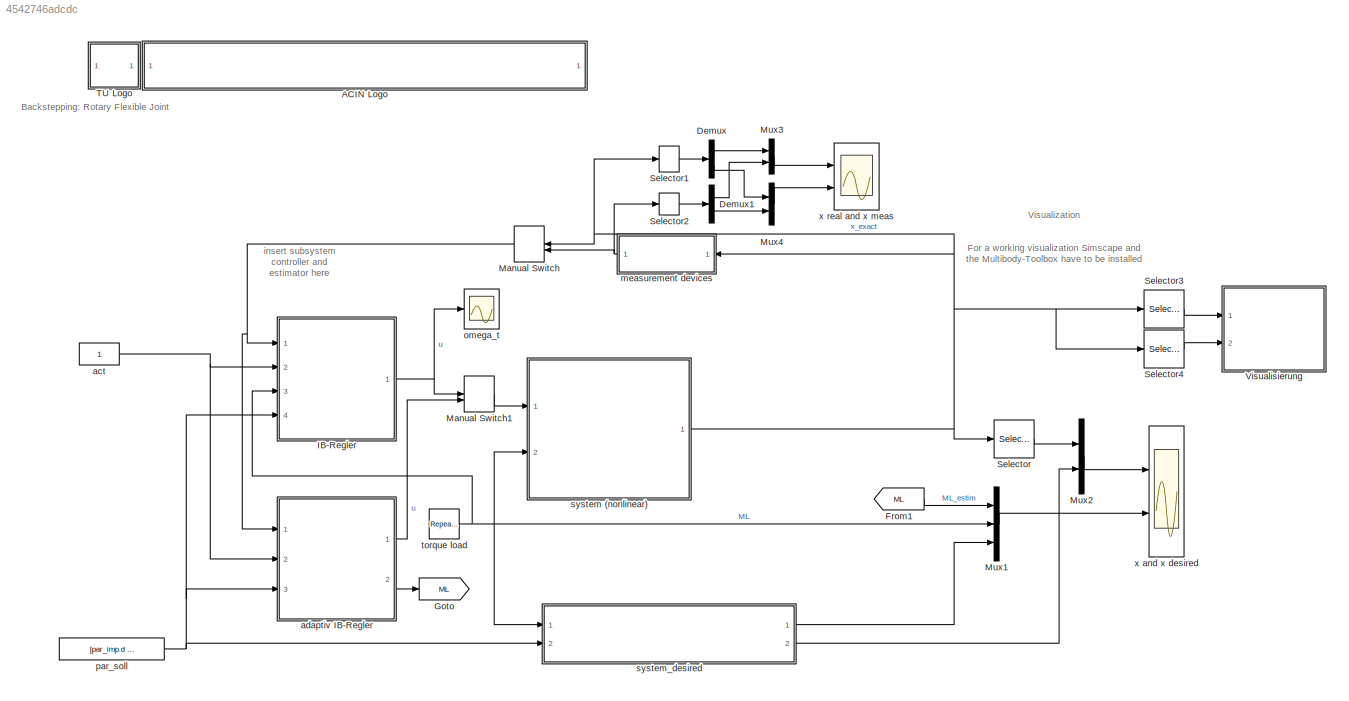
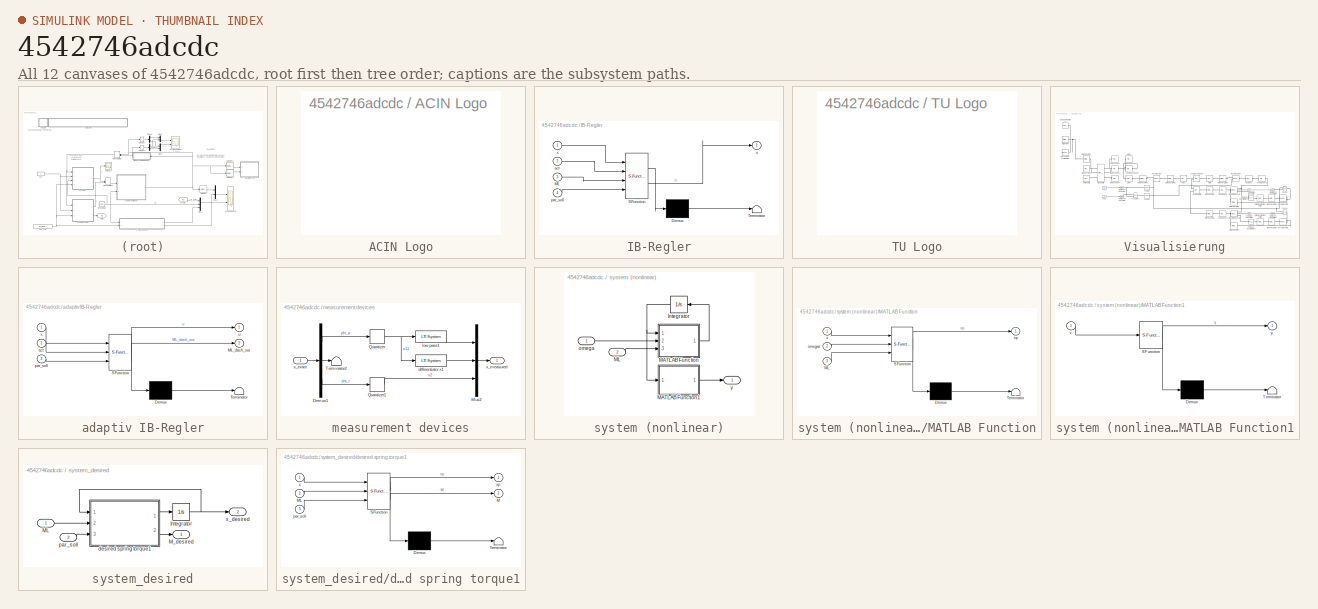
[diagram: thumbnail index - all 12 canvases of the model, root first then tree order]
MODEL slx_4542746adcdc
KIND model
CONFIG AbsTol = auto
CONFIG EnableMultiTasking = off
CONFIG FixedStep = auto
CONFIG MaxStep = auto
CONFIG MinStep = auto
CONFIG RelTol = 1e-3
CONFIG SampleTimeConstraint = Unconstrained
CONFIG SolverName = VariableStepAuto
CONFIG StartTime = 0.0
CONFIG StopTime = 10.0
BLOCK [SubSystem] ACIN Logo
  Ports = []
  RequestExecContextInheritance = off
  UserDataPersistent = on
BLOCK [Demux] Demux
  Outputs = 2
  Ports = [1, 2]
BLOCK [Demux] Demux1
  Outputs = 2
  Ports = [1, 2]
BLOCK [From] From1
  CloseFcn = tagdialog Close
  GotoTag = ML
BLOCK [Goto] Goto
  GotoTag = ML
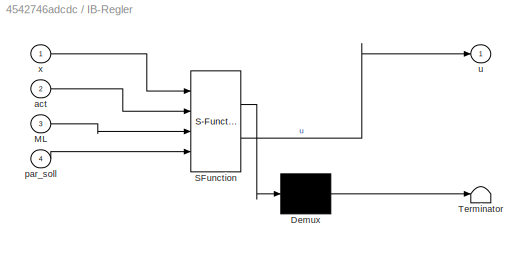
BLOCK [SubSystem] IB-Regler
  ErrorFcn = Stateflow.Translate.translate
  PermitHierarchicalResolution = ExplicitOnly
  Ports = [4, 1]
  RequestExecContextInheritance = off
  SFBlockType = MATLAB Function
  TreatAsAtomicUnit = on
BLOCK [Demux] IB-Regler/ Demux 
  Outputs = 1
  Ports = [1, 1]
BLOCK [S-Function] IB-Regler/ SFunction 
  EnableBusSupport = on
  FunctionName = sf_sfun
  Parameters = parSys,par_reg
  PortCounts = [4 2]
  Ports = [4, 2]
  SFcnIsStateOwnerBlock = off
  SFunctionDeploymentMode = off
  Tag = Stateflow S-Function 2
BLOCK [Terminator] IB-Regler/ Terminator 
BLOCK [Inport] IB-Regler/ML
  Port = 3
BLOCK [Inport] IB-Regler/act
  Port = 2
BLOCK [Inport] IB-Regler/par_soll
  Port = 4
BLOCK [Outport] IB-Regler/u
BLOCK [Inport] IB-Regler/x
BLOCK [ManualSwitch] Manual Switch
  CurrentSetting = 0
BLOCK [ManualSwitch] Manual Switch1
BLOCK [Mux] Mux1
  DisplayOption = bar
  Inputs = 3
  Ports = [3, 1]
BLOCK [Mux] Mux2
  DisplayOption = bar
  Inputs = 2
  Ports = [2, 1]
BLOCK [Mux] Mux3
  DisplayOption = bar
  Inputs = 2
  Ports = [2, 1]
BLOCK [Mux] Mux4
  DisplayOption = bar
  Inputs = 2
  Ports = [2, 1]
BLOCK [Selector] Selector
  IndexOptions = Index vector (dialog)
  Indices = [1 2]
  InputPortWidth = 3
  OutputSizes = 1
  Ports = [1, 1]
BLOCK [Selector] Selector1
  IndexOptions = Index vector (dialog)
  Indices = [1 2]
  InputPortWidth = 3
  OutputSizes = 1
  Ports = [1, 1]
BLOCK [Selector] Selector2
  IndexOptions = Index vector (dialog)
  Indices = [1 2]
  InputPortWidth = 3
  OutputSizes = 1
  Ports = [1, 1]
BLOCK [Selector] Selector3
  IndexOptions = Index vector (dialog)
  Indices = [1]
  InputPortWidth = 3
  OutputSizes = 1
  Ports = [1, 1]
BLOCK [Selector] Selector4
  IndexOptions = Index vector (dialog)
  Indices = [3]
  InputPortWidth = 3
  OutputSizes = 1
  Ports = [1, 1]
BLOCK [SubSystem] TU Logo
  Ports = []
  RequestExecContextInheritance = off
  UserDataPersistent = on
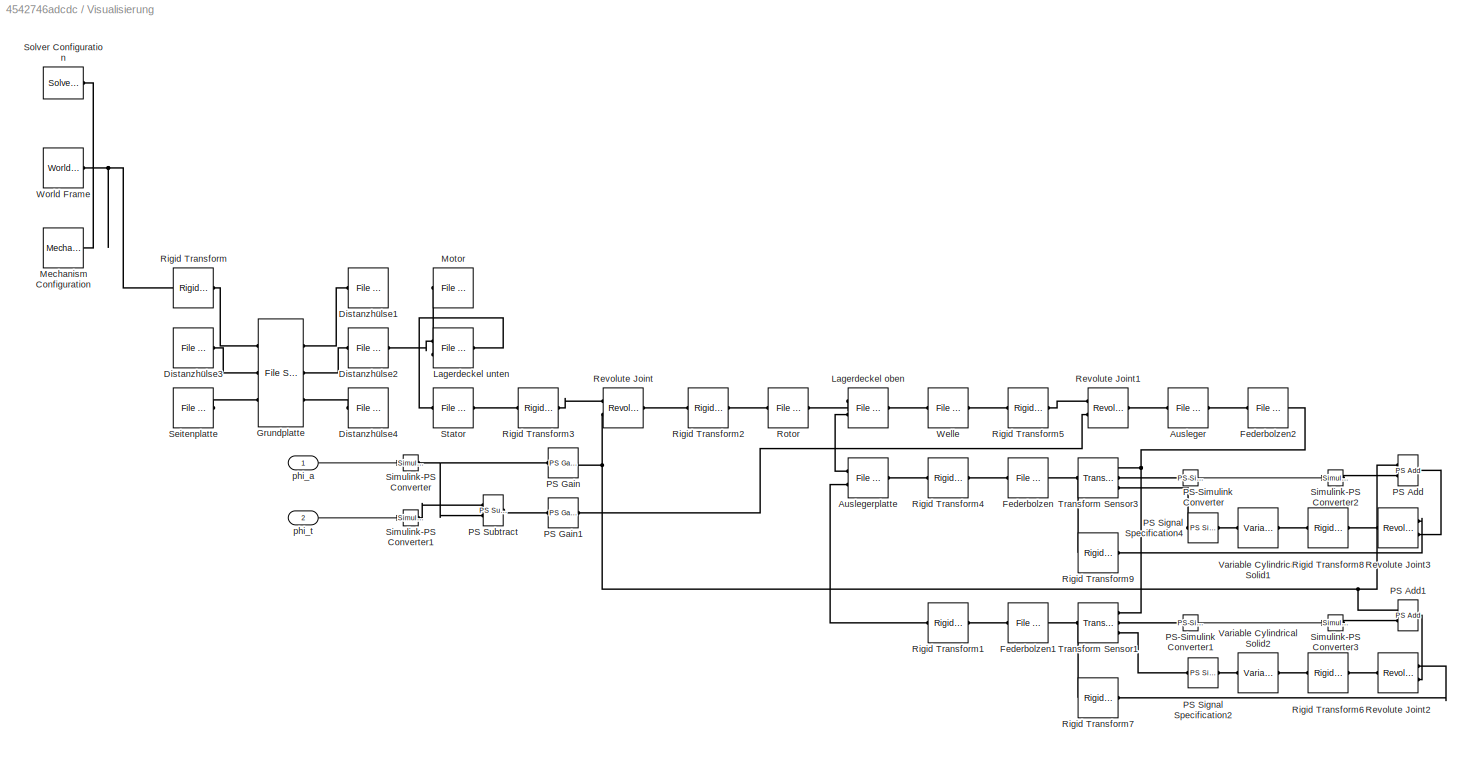
BLOCK [SubSystem] Visualisierung
  Ports = [2]
  RequestExecContextInheritance = off
BLOCK [Reference] Visualisierung/Ausleger  REF=sm_lib/Body Elements/File Solid
  Ports = [0, 0, 0, 0, 0, 1, 1]
  SourceBlock = sm_lib/Body Elements/File Solid
  SourceProductBaseCode = MS
  SourceType = File Solid
BLOCK [Reference] Visualisierung/Auslegerplatte  REF=sm_lib/Body Elements/File Solid
  Ports = [0, 0, 0, 0, 0, 2, 1]
  SourceBlock = sm_lib/Body Elements/File Solid
  SourceProductBaseCode = MS
  SourceType = File Solid
BLOCK [Reference] Visualisierung/Distanzhülse1  REF=sm_lib/Body Elements/File Solid
  Ports = [0, 0, 0, 0, 0, 0, 1]
  SourceBlock = sm_lib/Body Elements/File Solid
  SourceProductBaseCode = MS
  SourceType = File Solid
BLOCK [Reference] Visualisierung/Distanzhülse2  REF=sm_lib/Body Elements/File Solid
  Ports = [0, 0, 0, 0, 0, 1, 1]
  SourceBlock = sm_lib/Body Elements/File Solid
  SourceProductBaseCode = MS
  SourceType = File Solid
BLOCK [Reference] Visualisierung/Distanzhülse3  REF=sm_lib/Body Elements/File Solid
  Ports = [0, 0, 0, 0, 0, 0, 1]
  SourceBlock = sm_lib/Body Elements/File Solid
  SourceProductBaseCode = MS
  SourceType = File Solid
BLOCK [Reference] Visualisierung/Distanzhülse4  REF=sm_lib/Body Elements/File Solid
  Ports = [0, 0, 0, 0, 0, 0, 1]
  SourceBlock = sm_lib/Body Elements/File Solid
  SourceProductBaseCode = MS
  SourceType = File Solid
BLOCK [Reference] Visualisierung/Federbolzen  REF=sm_lib/Body Elements/File Solid
  Ports = [0, 0, 0, 0, 0, 1, 1]
  SourceBlock = sm_lib/Body Elements/File Solid
  SourceProductBaseCode = MS
  SourceType = File Solid
BLOCK [Reference] Visualisierung/Federbolzen1  REF=sm_lib/Body Elements/File Solid
  Ports = [0, 0, 0, 0, 0, 1, 1]
  SourceBlock = sm_lib/Body Elements/File Solid
  SourceProductBaseCode = MS
  SourceType = File Solid
BLOCK [Reference] Visualisierung/Federbolzen2  REF=sm_lib/Body Elements/File Solid
  Ports = [0, 0, 0, 0, 0, 1, 1]
  SourceBlock = sm_lib/Body Elements/File Solid
  SourceProductBaseCode = MS
  SourceType = File Solid
BLOCK [Reference] Visualisierung/Grundplatte  REF=sm_lib/Body Elements/File Solid
  Ports = [0, 0, 0, 0, 0, 3, 3]
  SourceBlock = sm_lib/Body Elements/File Solid
  SourceProductBaseCode = MS
  SourceType = File Solid
BLOCK [Reference] Visualisierung/Lagerdeckel oben  REF=sm_lib/Body Elements/File Solid
  Ports = [0, 0, 0, 0, 0, 2, 1]
  SourceBlock = sm_lib/Body Elements/File Solid
  SourceProductBaseCode = MS
  SourceType = File Solid
BLOCK [Reference] Visualisierung/Lagerdeckel unten  REF=sm_lib/Body Elements/File Solid
  Ports = [0, 0, 0, 0, 0, 2, 1]
  SourceBlock = sm_lib/Body Elements/File Solid
  SourceProductBaseCode = MS
  SourceType = File Solid
BLOCK [Reference] Visualisierung/Mechanism Configuration  REF=sm_lib/Utilities/Mechanism
Configuration
  Ports = [0, 0, 0, 0, 0, 0, 1]
  SourceBlock = sm_lib/Utilities/Mechanism\nConfiguration
  SourceProductBaseCode = MS
  SourceType = Mechanism\nConfiguration
BLOCK [Reference] Visualisierung/Motor  REF=sm_lib/Body Elements/File Solid
  Ports = [0, 0, 0, 0, 0, 1]
  SourceBlock = sm_lib/Body Elements/File Solid
  SourceProductBaseCode = MS
  SourceType = File Solid
BLOCK [Reference] Visualisierung/PS Add  REF=fl_lib/Physical Signals/Functions/PS Add
  Ports = [0, 0, 0, 0, 0, 2, 1]
  SourceBlock = fl_lib/Physical Signals/Functions/PS Add
  SourceProductBaseCode = SS
  SourceType = PS Add
BLOCK [Reference] Visualisierung/PS Add1  REF=fl_lib/Physical Signals/Functions/PS Add
  Ports = [0, 0, 0, 0, 0, 2, 1]
  SourceBlock = fl_lib/Physical Signals/Functions/PS Add
  SourceProductBaseCode = SS
  SourceType = PS Add
BLOCK [Reference] Visualisierung/PS Gain  REF=fl_lib/Physical Signals/Functions/PS Gain
  Ports = [0, 0, 0, 0, 0, 1, 1]
  SourceBlock = fl_lib/Physical Signals/Functions/PS Gain
  SourceProductBaseCode = SS
  SourceType = PS Gain
BLOCK [Reference] Visualisierung/PS Gain1  REF=fl_lib/Physical Signals/Functions/PS Gain
  Ports = [0, 0, 0, 0, 0, 1, 1]
  SourceBlock = fl_lib/Physical Signals/Functions/PS Gain
  SourceProductBaseCode = SS
  SourceType = PS Gain
BLOCK [Reference] Visualisierung/PS Signal Specification2  REF=fl_lib/Physical Signals/Utilities/PS Signal
Specification
  Ports = [0, 0, 0, 0, 0, 1, 1]
  SourceBlock = fl_lib/Physical Signals/Utilities/PS Signal\nSpecification
  SourceProductBaseCode = SS
  SourceType = PS Signal\nSpecification
BLOCK [Reference] Visualisierung/PS Signal Specification4  REF=fl_lib/Physical Signals/Utilities/PS Signal
Specification
  Ports = [0, 0, 0, 0, 0, 1, 1]
  SourceBlock = fl_lib/Physical Signals/Utilities/PS Signal\nSpecification
  SourceProductBaseCode = SS
  SourceType = PS Signal\nSpecification
BLOCK [Reference] Visualisierung/PS Subtract  REF=fl_lib/Physical Signals/Functions/PS Subtract
  Ports = [0, 0, 0, 0, 0, 2, 1]
  SourceBlock = fl_lib/Physical Signals/Functions/PS Subtract
  SourceProductBaseCode = SS
  SourceType = PS Subtract
BLOCK [Reference] Visualisierung/PS-Simulink Converter  REF=nesl_utility/PS-Simulink
Converter
  Ports = [0, 1, 0, 0, 0, 1]
  SourceBlock = nesl_utility/PS-Simulink\nConverter
  SourceProductBaseCode = SS
  SourceType = PS-Simulink\nConverter
BLOCK [Reference] Visualisierung/PS-Simulink Converter1  REF=nesl_utility/PS-Simulink
Converter
  Ports = [0, 1, 0, 0, 0, 1]
  SourceBlock = nesl_utility/PS-Simulink\nConverter
  SourceProductBaseCode = SS
  SourceType = PS-Simulink\nConverter
BLOCK [Reference] Visualisierung/Revolute Joint  REF=sm_lib/Joints/Revolute Joint
  Ports = [0, 0, 0, 0, 0, 2, 1]
  SourceBlock = sm_lib/Joints/Revolute Joint
  SourceProductBaseCode = MS
  SourceType = Revolute Joint
BLOCK [Reference] Visualisierung/Revolute Joint1  REF=sm_lib/Joints/Revolute Joint
  Ports = [0, 0, 0, 0, 0, 2, 1]
  SourceBlock = sm_lib/Joints/Revolute Joint
  SourceProductBaseCode = MS
  SourceType = Revolute Joint
BLOCK [Reference] Visualisierung/Revolute Joint2  REF=sm_lib/Joints/Revolute Joint
  Ports = [0, 0, 0, 0, 0, 2, 1]
  SourceBlock = sm_lib/Joints/Revolute Joint
  SourceProductBaseCode = MS
  SourceType = Revolute Joint
BLOCK [Reference] Visualisierung/Revolute Joint3  REF=sm_lib/Joints/Revolute Joint
  Ports = [0, 0, 0, 0, 0, 2, 1]
  SourceBlock = sm_lib/Joints/Revolute Joint
  SourceProductBaseCode = MS
  SourceType = Revolute Joint
BLOCK [Reference] Visualisierung/Rigid Transform  REF=sm_lib/Frames and
Transforms/Rigid
Transform
  Ports = [0, 0, 0, 0, 0, 1, 1]
  SourceBlock = sm_lib/Frames and\nTransforms/Rigid\nTransform
  SourceProductBaseCode = MS
  SourceType = Rigid\nTransform
BLOCK [Reference] Visualisierung/Rigid Transform1  REF=sm_lib/Frames and
Transforms/Rigid
Transform
  Ports = [0, 0, 0, 0, 0, 1, 1]
  SourceBlock = sm_lib/Frames and\nTransforms/Rigid\nTransform
  SourceProductBaseCode = MS
  SourceType = Rigid\nTransform
BLOCK [Reference] Visualisierung/Rigid Transform2  REF=sm_lib/Frames and
Transforms/Rigid
Transform
  Ports = [0, 0, 0, 0, 0, 1, 1]
  SourceBlock = sm_lib/Frames and\nTransforms/Rigid\nTransform
  SourceProductBaseCode = MS
  SourceType = Rigid\nTransform
BLOCK [Reference] Visualisierung/Rigid Transform3  REF=sm_lib/Frames and
Transforms/Rigid
Transform
  Ports = [0, 0, 0, 0, 0, 1, 1]
  SourceBlock = sm_lib/Frames and\nTransforms/Rigid\nTransform
  SourceProductBaseCode = MS
  SourceType = Rigid\nTransform
BLOCK [Reference] Visualisierung/Rigid Transform4  REF=sm_lib/Frames and
Transforms/Rigid
Transform
  Ports = [0, 0, 0, 0, 0, 1, 1]
  SourceBlock = sm_lib/Frames and\nTransforms/Rigid\nTransform
  SourceProductBaseCode = MS
  SourceType = Rigid\nTransform
BLOCK [Reference] Visualisierung/Rigid Transform5  REF=sm_lib/Frames and
Transforms/Rigid
Transform
  Ports = [0, 0, 0, 0, 0, 1, 1]
  SourceBlock = sm_lib/Frames and\nTransforms/Rigid\nTransform
  SourceProductBaseCode = MS
  SourceType = Rigid\nTransform
BLOCK [Reference] Visualisierung/Rigid Transform6  REF=sm_lib/Frames and
Transforms/Rigid
Transform
  Ports = [0, 0, 0, 0, 0, 1, 1]
  SourceBlock = sm_lib/Frames and\nTransforms/Rigid\nTransform
  SourceProductBaseCode = MS
  SourceType = Rigid\nTransform
BLOCK [Reference] Visualisierung/Rigid Transform7  REF=sm_lib/Frames and
Transforms/Rigid
Transform
  Ports = [0, 0, 0, 0, 0, 1, 1]
  SourceBlock = sm_lib/Frames and\nTransforms/Rigid\nTransform
  SourceProductBaseCode = MS
  SourceType = Rigid\nTransform
BLOCK [Reference] Visualisierung/Rigid Transform8  REF=sm_lib/Frames and
Transforms/Rigid
Transform
  Ports = [0, 0, 0, 0, 0, 1, 1]
  SourceBlock = sm_lib/Frames and\nTransforms/Rigid\nTransform
  SourceProductBaseCode = MS
  SourceType = Rigid\nTransform
BLOCK [Reference] Visualisierung/Rigid Transform9  REF=sm_lib/Frames and
Transforms/Rigid
Transform
  Ports = [0, 0, 0, 0, 0, 1, 1]
  SourceBlock = sm_lib/Frames and\nTransforms/Rigid\nTransform
  SourceProductBaseCode = MS
  SourceType = Rigid\nTransform
BLOCK [Reference] Visualisierung/Rotor  REF=sm_lib/Body Elements/File Solid
  Ports = [0, 0, 0, 0, 0, 1, 1]
  SourceBlock = sm_lib/Body Elements/File Solid
  SourceProductBaseCode = MS
  SourceType = File Solid
BLOCK [Reference] Visualisierung/Seitenplatte  REF=sm_lib/Body Elements/File Solid
  Ports = [0, 0, 0, 0, 0, 1]
  SourceBlock = sm_lib/Body Elements/File Solid
  SourceProductBaseCode = MS
  SourceType = File Solid
BLOCK [Reference] Visualisierung/Simulink-PS Converter  REF=nesl_utility/Simulink-PS
Converter
  Ports = [1, 0, 0, 0, 0, 0, 1]
  SourceBlock = nesl_utility/Simulink-PS\nConverter
  SourceProductBaseCode = SS
  SourceType = Simulink-PS\nConverter
BLOCK [Reference] Visualisierung/Simulink-PS Converter1  REF=nesl_utility/Simulink-PS
Converter
  Ports = [1, 0, 0, 0, 0, 0, 1]
  SourceBlock = nesl_utility/Simulink-PS\nConverter
  SourceProductBaseCode = SS
  SourceType = Simulink-PS\nConverter
BLOCK [Reference] Visualisierung/Simulink-PS Converter2  REF=nesl_utility/Simulink-PS
Converter
  Ports = [1, 0, 0, 0, 0, 0, 1]
  SourceBlock = nesl_utility/Simulink-PS\nConverter
  SourceProductBaseCode = SS
  SourceType = Simulink-PS\nConverter
BLOCK [Reference] Visualisierung/Simulink-PS Converter3  REF=nesl_utility/Simulink-PS
Converter
  Ports = [1, 0, 0, 0, 0, 0, 1]
  SourceBlock = nesl_utility/Simulink-PS\nConverter
  SourceProductBaseCode = SS
  SourceType = Simulink-PS\nConverter
BLOCK [Reference] Visualisierung/Solver Configuration  REF=nesl_utility/Solver
Configuration
  Ports = [0, 0, 0, 0, 0, 0, 1]
  SourceBlock = nesl_utility/Solver\nConfiguration
  SourceProductBaseCode = SS
  SourceType = Solver\nConfiguration
BLOCK [Reference] Visualisierung/Stator  REF=sm_lib/Body Elements/File Solid
  Ports = [0, 0, 0, 0, 0, 1, 1]
  SourceBlock = sm_lib/Body Elements/File Solid
  SourceProductBaseCode = MS
  SourceType = File Solid
BLOCK [Reference] Visualisierung/Transform Sensor1  REF=sm_lib/Frames and
Transforms/Transform
Sensor
  Ports = [0, 0, 0, 0, 0, 1, 3]
  SourceBlock = sm_lib/Frames and\nTransforms/Transform\nSensor
  SourceProductBaseCode = MS
  SourceType = Transform\nSensor
BLOCK [Reference] Visualisierung/Transform Sensor3  REF=sm_lib/Frames and
Transforms/Transform
Sensor
  Ports = [0, 0, 0, 0, 0, 1, 3]
  SourceBlock = sm_lib/Frames and\nTransforms/Transform\nSensor
  SourceProductBaseCode = MS
  SourceType = Transform\nSensor
BLOCK [Reference] Visualisierung/Variable Cylindrical Solid1  REF=sm_lib/Body Elements/Variable Mass/Variable
Cylindrical Solid
  Ports = [0, 0, 0, 0, 0, 1, 1]
  SourceBlock = sm_lib/Body Elements/Variable Mass/Variable\nCylindrical Solid
  SourceProductBaseCode = MS
  SourceType = Variable\nCylindrical Solid
BLOCK [Reference] Visualisierung/Variable Cylindrical Solid2  REF=sm_lib/Body Elements/Variable Mass/Variable
Cylindrical Solid
  Ports = [0, 0, 0, 0, 0, 1, 1]
  SourceBlock = sm_lib/Body Elements/Variable Mass/Variable\nCylindrical Solid
  SourceProductBaseCode = MS
  SourceType = Variable\nCylindrical Solid
BLOCK [Reference] Visualisierung/Welle  REF=sm_lib/Body Elements/File Solid
  Ports = [0, 0, 0, 0, 0, 1, 1]
  SourceBlock = sm_lib/Body Elements/File Solid
  SourceProductBaseCode = MS
  SourceType = File Solid
BLOCK [Reference] Visualisierung/World Frame  REF=sm_lib/Frames and
Transforms/World Frame
  Ports = [0, 0, 0, 0, 0, 0, 1]
  SourceBlock = sm_lib/Frames and\nTransforms/World Frame
  SourceProductBaseCode = MS
  SourceType = World Frame
BLOCK [Inport] Visualisierung/phi_a
BLOCK [Inport] Visualisierung/phi_t
  Port = 2
BLOCK [Constant] act
BLOCK [SubSystem] adaptiv IB-Regler
  ErrorFcn = Stateflow.Translate.translate
  PermitHierarchicalResolution = ExplicitOnly
  Ports = [3, 2]
  RequestExecContextInheritance = off
  SFBlockType = MATLAB Function
  TreatAsAtomicUnit = on
BLOCK [Demux] adaptiv IB-Regler/ Demux 
  Outputs = 1
  Ports = [1, 1]
BLOCK [S-Function] adaptiv IB-Regler/ SFunction 
  EnableBusSupport = on
  FunctionName = sf_sfun
  Parameters = parSys,par_reg
  PortCounts = [3 3]
  Ports = [3, 3]
  SFcnIsStateOwnerBlock = off
  SFunctionDeploymentMode = off
  Tag = Stateflow S-Function 5
BLOCK [Terminator] adaptiv IB-Regler/ Terminator 
BLOCK [Outport] adaptiv IB-Regler/ML_dach_out
  Port = 2
BLOCK [Inport] adaptiv IB-Regler/act
  Port = 2
BLOCK [Inport] adaptiv IB-Regler/par_soll
  Port = 3
BLOCK [Outport] adaptiv IB-Regler/u
BLOCK [Inport] adaptiv IB-Regler/x
BLOCK [SubSystem] measurement devices
  Ports = [1, 1]
  RequestExecContextInheritance = off
BLOCK [Demux] measurement devices/Demux1
  Outputs = 3
  Ports = [1, 3]
BLOCK [Mux] measurement devices/Mux2
  DisplayOption = bar
  Inputs = 3
  Ports = [3, 1]
BLOCK [Quantizer] measurement devices/Quantizer
  QuantizationInterval = 2*pi/(3600*128)
BLOCK [Quantizer] measurement devices/Quantizer1
  QuantizationInterval = 2*pi/(2^16)
BLOCK [Terminator] measurement devices/Terminator2
BLOCK [Reference] measurement devices/differentiator x1  REF=cstblocks/LTI System
  Ports = [1, 1]
  SourceBlock = cstblocks/LTI System
  SourceProductBaseCode = CT
  SourceType = LTI Block
BLOCK [Reference] measurement devices/low pass1  REF=cstblocks/LTI System
  Ports = [1, 1]
  SourceBlock = cstblocks/LTI System
  SourceProductBaseCode = CT
  SourceType = LTI Block
BLOCK [Inport] measurement devices/x_exact
BLOCK [Outport] measurement devices/x_measured
BLOCK [Scope] omega_t
  Floating = off
  NumInputPorts = 1
  Ports = [1]
  ScopeSpecificationString = Simulink.scopes.TimeScopeBlockCfg('CurrentConfiguration', extmgr.ConfigurationSet(extmgr.Configuration('Core','General UI',true),extmgr.Configuration('Core','Source UI',true),extmgr.Configuration('Sources','WiredSimulink',true,'DataLoggingVariableName','ScopeData1','DataLoggingSaveFormat','StructureWithTime','DataLoggingDecimation','1','DataLoggingDecimateData',true),extmgr.Configuration('Visuals'...<+1662ch>
BLOCK [Constant] par_soll
  Value = [par_imp.d par_imp.M_max par_imp.c]
BLOCK [SubSystem] system (nonlinear)
  Ports = [2, 1]
  RequestExecContextInheritance = off
BLOCK [Integrator] system (nonlinear)/Integrator
  InitialCondition = [parSys.phit_0; parSys.phia_0; parSys.omega_0]
  Ports = [1, 1]
BLOCK [SubSystem] system (nonlinear)/MATLAB Function
  ErrorFcn = Stateflow.Translate.translate
  PermitHierarchicalResolution = ExplicitOnly
  Ports = [3, 1]
  RequestExecContextInheritance = off
  SFBlockType = MATLAB Function
  TreatAsAtomicUnit = on
BLOCK [Demux] system (nonlinear)/MATLAB Function/ Demux 
  Outputs = 1
  Ports = [1, 1]
BLOCK [S-Function] system (nonlinear)/MATLAB Function/ SFunction 
  EnableBusSupport = on
  FunctionName = sf_sfun
  PortCounts = [3 2]
  Ports = [3, 2]
  SFcnIsStateOwnerBlock = off
  SFunctionDeploymentMode = off
  Tag = Stateflow S-Function 3
BLOCK [Terminator] system (nonlinear)/MATLAB Function/ Terminator 
BLOCK [Inport] system (nonlinear)/MATLAB Function/ML
  Port = 3
BLOCK [Inport] system (nonlinear)/MATLAB Function/omegat
  Port = 2
BLOCK [Inport] system (nonlinear)/MATLAB Function/x
BLOCK [Outport] system (nonlinear)/MATLAB Function/xp
BLOCK [SubSystem] system (nonlinear)/MATLAB Function1
  ErrorFcn = Stateflow.Translate.translate
  PermitHierarchicalResolution = ExplicitOnly
  Ports = [1, 1]
  RequestExecContextInheritance = off
  SFBlockType = MATLAB Function
  TreatAsAtomicUnit = on
BLOCK [Demux] system (nonlinear)/MATLAB Function1/ Demux 
  Outputs = 1
  Ports = [1, 1]
BLOCK [S-Function] system (nonlinear)/MATLAB Function1/ SFunction 
  EnableBusSupport = on
  FunctionName = sf_sfun
  Parameters = parSys
  PortCounts = [1 2]
  Ports = [1, 2]
  SFcnIsStateOwnerBlock = off
  SFunctionDeploymentMode = off
  Tag = Stateflow S-Function 4
BLOCK [Terminator] system (nonlinear)/MATLAB Function1/ Terminator 
BLOCK [Inport] system (nonlinear)/MATLAB Function1/x
BLOCK [Outport] system (nonlinear)/MATLAB Function1/y
BLOCK [Inport] system (nonlinear)/ML
  Port = 2
BLOCK [Inport] system (nonlinear)/omega
BLOCK [Outport] system (nonlinear)/y
BLOCK [SubSystem] system_desired
  Ports = [2, 2]
  RequestExecContextInheritance = off
  UserDataPersistent = on
BLOCK [Integrator] system_desired/Integrator
  InitialCondition = [0 0]
  Ports = [1, 1]
BLOCK [Inport] system_desired/ML
BLOCK [Outport] system_desired/M_desired
BLOCK [SubSystem] system_desired/desired spring torque1
  ErrorFcn = Stateflow.Translate.translate
  PermitHierarchicalResolution = ExplicitOnly
  Ports = [3, 2]
  RequestExecContextInheritance = off
  SFBlockType = MATLAB Function
  TreatAsAtomicUnit = on
BLOCK [Demux] system_desired/desired spring torque1/ Demux 
  Outputs = 1
  Ports = [1, 1]
BLOCK [S-Function] system_desired/desired spring torque1/ SFunction 
  EnableBusSupport = on
  FunctionName = sf_sfun
  Parameters = parSys
  PortCounts = [3 3]
  Ports = [3, 3]
  SFcnIsStateOwnerBlock = off
  SFunctionDeploymentMode = off
  Tag = Stateflow S-Function 1
BLOCK [Terminator] system_desired/desired spring torque1/ Terminator 
BLOCK [Outport] system_desired/desired spring torque1/M
  Port = 2
BLOCK [Inport] system_desired/desired spring torque1/ML
  Port = 2
BLOCK [Inport] system_desired/desired spring torque1/par_soll
  Port = 3
BLOCK [Inport] system_desired/desired spring torque1/x
BLOCK [Outport] system_desired/desired spring torque1/xp
BLOCK [Inport] system_desired/par_soll
  Port = 2
BLOCK [Outport] system_desired/x_desired
  Port = 2
BLOCK [Reference] torque load  REF=simulink/Sources/Repeating
Sequence
  Ports = [0, 1]
  SourceBlock = simulink/Sources/Repeating\nSequence
  SourceProductBaseCode = SL
  SourceType = Repeating table
BLOCK [Scope] x and x desired
  Floating = off
  NumInputPorts = 2
  Ports = [2]
  ScopeSpecificationString = Simulink.scopes.TimeScopeBlockCfg('CurrentConfiguration', extmgr.ConfigurationSet(extmgr.Configuration('Core','General UI',true),extmgr.Configuration('Core','Source UI',true),extmgr.Configuration('Sources','WiredSimulink',true,'DataLoggingSaveFormat','StructureWithTime','DataLoggingDecimation','1','DataLoggingDecimateData',true),extmgr.Configuration('Visuals','Time Domain',true,'SerializedDisplays...<+2471ch>
BLOCK [Scope] x real and x meas
  Floating = off
  NumInputPorts = 2
  Ports = [2]
  ScopeSpecificationString = Simulink.scopes.TimeScopeBlockCfg('CurrentConfiguration', extmgr.ConfigurationSet(extmgr.Configuration('Core','General UI',true),extmgr.Configuration('Core','Source UI',true),extmgr.Configuration('Sources','WiredSimulink',true,'DataLoggingVariableName','ScopeData2','DataLoggingSaveFormat','StructureWithTime','DataLoggingDecimation','1','DataLoggingDecimateData',true),extmgr.Configuration('Visuals'...<+2365ch>
ANNOTATION (root): Visualization
ANNOTATION (root): Backstepping: Rotary Flexible Joint
ANNOTATION (root): For a working visualization Simscape and the Multibody-Toolbox have to be installed
ANNOTATION (root): insert subsystem controller and estimator here
LINE Demux1:1 -> Mux3:2
LINE Demux1:2 -> Mux4:2
LINE Demux:1 -> Mux3:1
LINE Demux:2 -> Mux4:1
LINE From1:1 -> Mux1:1
NET IB-Regler:1 -> Manual Switch1:1, omega_t:1
LINE Manual Switch1:1 -> system (nonlinear):1
NET Manual Switch:1 -> IB-Regler:1, adaptiv IB-Regler:1
LINE Mux1:1 -> x and x desired:2
LINE Mux2:1 -> x and x desired:1
LINE Mux3:1 -> x real and x meas:1
LINE Mux4:1 -> x real and x meas:2
LINE Selector1:1 -> Demux:1
LINE Selector2:1 -> Demux1:1
LINE Selector3:1 -> Visualisierung:1
LINE Selector4:1 -> Visualisierung:2
LINE Selector:1 -> Mux2:1
LINE Visualisierung/PS-Simulink Converter1:1 -> Visualisierung/Simulink-PS Converter3:1
LINE Visualisierung/PS-Simulink Converter:1 -> Visualisierung/Simulink-PS Converter2:1
LINE Visualisierung/phi_a:1 -> Visualisierung/Simulink-PS Converter:1
LINE Visualisierung/phi_t:1 -> Visualisierung/Simulink-PS Converter1:1
NET act:1 -> IB-Regler:2, adaptiv IB-Regler:2
LINE adaptiv IB-Regler:1 -> Manual Switch1:2
LINE adaptiv IB-Regler:2 -> Goto:1
LINE measurement devices/Demux1:1 -> measurement devices/Quantizer:1
LINE measurement devices/Demux1:2 -> measurement devices/Terminator2:1
LINE measurement devices/Demux1:3 -> measurement devices/Quantizer1:1
LINE measurement devices/Mux2:1 -> measurement devices/x_measured:1
LINE measurement devices/Quantizer1:1 -> measurement devices/Mux2:3
NET measurement devices/Quantizer:1 -> measurement devices/differentiator x1:1, measurement devices/low pass1:1
LINE measurement devices/differentiator x1:1 -> measurement devices/Mux2:2
LINE measurement devices/low pass1:1 -> measurement devices/Mux2:1
LINE measurement devices/x_exact:1 -> measurement devices/Demux1:1
NET measurement devices:1 -> Manual Switch:2, Selector2:1
NET par_soll:1 -> IB-Regler:4, adaptiv IB-Regler:3, system_desired:2
NET system (nonlinear)/Integrator:1 -> system (nonlinear)/MATLAB Function1:1, system (nonlinear)/MATLAB Function:1
LINE system (nonlinear)/MATLAB Function1:1 -> system (nonlinear)/y:1
LINE system (nonlinear)/MATLAB Function:1 -> system (nonlinear)/Integrator:1
LINE system (nonlinear)/ML:1 -> system (nonlinear)/MATLAB Function:3
LINE system (nonlinear)/omega:1 -> system (nonlinear)/MATLAB Function:2
NET system (nonlinear):1 -> Manual Switch:1, Selector1:1, Selector3:1, Selector4:1, Selector:1, measurement devices:1
NET system_desired/Integrator:1 -> system_desired/desired spring torque1:1, system_desired/x_desired:1
LINE system_desired/ML:1 -> system_desired/desired spring torque1:2
LINE system_desired/desired spring torque1:1 -> system_desired/Integrator:1
LINE system_desired/desired spring torque1:2 -> system_desired/M_desired:1
LINE system_desired/par_soll:1 -> system_desired/desired spring torque1:3
LINE system_desired:1 -> Mux1:3
LINE system_desired:2 -> Mux2:2
NET torque load:1 -> IB-Regler:3, Mux1:2, system (nonlinear):2, system_desired:1
PLINE Visualisierung/Ausleger:LConn1 -- Visualisierung/Revolute Joint1:RConn1
PLINE Visualisierung/Ausleger:RConn1 -- Visualisierung/Federbolzen2:LConn1
PLINE Visualisierung/Auslegerplatte:LConn1 -- Visualisierung/Lagerdeckel oben:LConn2
PLINE Visualisierung/Auslegerplatte:LConn2 -- Visualisierung/Rigid Transform1:LConn1
PLINE Visualisierung/Auslegerplatte:RConn1 -- Visualisierung/Rigid Transform4:LConn1
PLINE Visualisierung/Distanzhülse1:RConn1 -- Visualisierung/Grundplatte:LConn1
PLINE Visualisierung/Distanzhülse2:LConn1 -- Visualisierung/Lagerdeckel unten:LConn1
PLINE Visualisierung/Distanzhülse2:RConn1 -- Visualisierung/Grundplatte:LConn2
PLINE Visualisierung/Distanzhülse3:RConn1 -- Visualisierung/Grundplatte:RConn2
PLINE Visualisierung/Distanzhülse4:RConn1 -- Visualisierung/Grundplatte:LConn3
PLINE Visualisierung/Federbolzen1:LConn1 -- Visualisierung/Rigid Transform1:RConn1
PNET net1: Visualisierung/Federbolzen1:RConn1 -- Visualisierung/Rigid Transform7:LConn1 -- Visualisierung/Transform Sensor1:LConn1
PNET net2: Visualisierung/Federbolzen2:RConn1 -- Visualisierung/Transform Sensor1:RConn1 -- Visualisierung/Transform Sensor3:RConn1
PLINE Visualisierung/Federbolzen:LConn1 -- Visualisierung/Rigid Transform4:RConn1
PNET net3: Visualisierung/Federbolzen:RConn1 -- Visualisierung/Rigid Transform9:LConn1 -- Visualisierung/Transform Sensor3:LConn1
PLINE Visualisierung/Grundplatte:RConn1 -- Visualisierung/Rigid Transform:RConn1
PLINE Visualisierung/Grundplatte:RConn3 -- Visualisierung/Seitenplatte:LConn1
PLINE Visualisierung/Lagerdeckel oben:LConn1 -- Visualisierung/Rotor:RConn1
PLINE Visualisierung/Lagerdeckel oben:RConn1 -- Visualisierung/Welle:LConn1
PLINE Visualisierung/Lagerdeckel unten:LConn2 -- Visualisierung/Motor:LConn1
PLINE Visualisierung/Lagerdeckel unten:RConn1 -- Visualisierung/Stator:LConn1
PNET net4: Visualisierung/Mechanism Configuration:RConn1 -- Visualisierung/Rigid Transform:LConn1 -- Visualisierung/Solver Configuration:RConn1 -- Visualisierung/World Frame:RConn1
PNET net5: Visualisierung/PS Add1:LConn1 -- Visualisierung/PS Add:LConn1 -- Visualisierung/PS Gain:RConn1 -- Visualisierung/Revolute Joint:LConn2
PLINE Visualisierung/PS Add1:LConn2 -- Visualisierung/Simulink-PS Converter3:RConn1
PLINE Visualisierung/PS Add1:RConn1 -- Visualisierung/Revolute Joint2:LConn2
PLINE Visualisierung/PS Add:LConn2 -- Visualisierung/Simulink-PS Converter2:RConn1
PLINE Visualisierung/PS Add:RConn1 -- Visualisierung/Revolute Joint3:LConn2
PLINE Visualisierung/PS Gain1:LConn1 -- Visualisierung/PS Subtract:RConn1
PLINE Visualisierung/PS Gain1:RConn1 -- Visualisierung/Revolute Joint1:LConn2
PNET net6: Visualisierung/PS Gain:LConn1 -- Visualisierung/PS Subtract:LConn2 -- Visualisierung/Simulink-PS Converter:RConn1
PLINE Visualisierung/PS Signal Specification2:LConn1 -- Visualisierung/Transform Sensor1:RConn3
PLINE Visualisierung/PS Signal Specification2:RConn1 -- Visualisierung/Variable Cylindrical Solid2:LConn1
PLINE Visualisierung/PS Signal Specification4:LConn1 -- Visualisierung/Transform Sensor3:RConn3
PLINE Visualisierung/PS Signal Specification4:RConn1 -- Visualisierung/Variable Cylindrical Solid1:LConn1
PLINE Visualisierung/PS Subtract:LConn1 -- Visualisierung/Simulink-PS Converter1:RConn1
PLINE Visualisierung/PS-Simulink Converter1:LConn1 -- Visualisierung/Transform Sensor1:RConn2
PLINE Visualisierung/PS-Simulink Converter:LConn1 -- Visualisierung/Transform Sensor3:RConn2
PLINE Visualisierung/Revolute Joint1:LConn1 -- Visualisierung/Rigid Transform5:RConn1
PLINE Visualisierung/Revolute Joint2:LConn1 -- Visualisierung/Rigid Transform7:RConn1
PLINE Visualisierung/Revolute Joint2:RConn1 -- Visualisierung/Rigid Transform6:LConn1
PLINE Visualisierung/Revolute Joint3:LConn1 -- Visualisierung/Rigid Transform9:RConn1
PLINE Visualisierung/Revolute Joint3:RConn1 -- Visualisierung/Rigid Transform8:LConn1
PLINE Visualisierung/Revolute Joint:LConn1 -- Visualisierung/Rigid Transform3:RConn1
PLINE Visualisierung/Revolute Joint:RConn1 -- Visualisierung/Rigid Transform2:LConn1
PLINE Visualisierung/Rigid Transform2:RConn1 -- Visualisierung/Rotor:LConn1
PLINE Visualisierung/Rigid Transform3:LConn1 -- Visualisierung/Stator:RConn1
PLINE Visualisierung/Rigid Transform5:LConn1 -- Visualisierung/Welle:RConn1
PLINE Visualisierung/Rigid Transform6:RConn1 -- Visualisierung/Variable Cylindrical Solid2:RConn1
PLINE Visualisierung/Rigid Transform8:RConn1 -- Visualisierung/Variable Cylindrical Solid1:RConn1
note: NET lines group one-source signal fan-out (src -> all destinations, sorted); 1:1 wires keep LINE; PNET lines group multi-terminal physical nets as a canonical sorted terminal list (undirected conserving connections); 2-terminal nets keep the pairwise PLINE form
CHART system_desired/desired spring torque1 states=1 transitions=1
  STATE_LABEL 'eML_blk_kernel()'
  STATE_LABEL 'SCRIPT:\nfunction [xp, M] = fcn(x, ML, par_soll, parSys)\n\n% states\nx11 = x(1);\nx12 = x(2);  \n\n% desired moment\nM_max = par_soll(2);\nc = par_soll(3);\nM = M_max * tanh(c * x11 / M_max);\n\n\n% desired damping\nd = par_soll(1);\n\n% desired positions\nxp = zeros(2,1);\nxp(1) = x12;\nxp(2) = 1/parSys.I_a * (ML - M - d*x12);\n\n'
CHART IB-Regler states=1 transitions=1
  STATE_LABEL 'eML_blk_kernel()'
  STATE_LABEL 'SCRIPT:\nfunction u  = fcn(x,act,parSys, ML, par_reg, par_soll)\nif(act==0)\n    u=0;\nelse\n    \n% Zustände\nx11 = x(1);\nx12 = x(2);\nx2  = x(3);\n\n% Reglerparameter -> Parameter_RFJ\nk1= par_reg.k1;\ngamma=par_reg.gamma1;\n\n% Systemparameter -> Parameter_RFJ\nIa = parSys.I_a;\nda = parSys.d_a;\nc0 = parSys.c_0;\n\n% Parameter des Sollystems -> Parameter_RFJ\n% werden über Simulink eingelesen laut Angabe -> Vorte...<+526ch>'
CHART system (nonlinear)/MATLAB Function states=1 transitions=1
  STATE_LABEL 'eML_blk_kernel()'
  STATE_LABEL 'SCRIPT:\nfunction xp = fcn(x, omegat, ML)\n    xp = zeros(3,1);\n    xp = RFJ_Student(x, omegat, ML);\nend\n'
CHART system (nonlinear)/MATLAB Function1 states=1 transitions=1
  STATE_LABEL 'eML_blk_kernel()'
  STATE_LABEL 'SCRIPT:\nfunction y = fcn(x, parSys)\n\ny = zeros(3,1); % necesary for home\n\n% map the states\nphit=x(1);\nphia=x(2);\nomega=x(3);\n\n% create the output\ny(1) = phia;\ny(2) = omega;\ny(3) = phit;\n\n'
CHART adaptiv IB-Regler states=1 transitions=1
  STATE_LABEL 'eML_blk_kernel()'
  STATE_LABEL 'SCRIPT:\nfunction [u,ML_dach_out] = fcn(x,act,parSys, par_reg, par_soll)\n\n    persistent ML_dach\n    if isempty(ML_dach) ML_dach = 0; end\n\n    if act==0\n    u=0;\n    ML_dach = 0;\n    ML_dach_out = 0;\n\n    else    %act = 1;\n    \n    % Zustände übernehmen\n    x11 = x(1);\n    x12 = x(2);\n    x2  = x(3);\n\n    % Reglerparameter -> Parameter_RFJ\n    k0 = par_reg.k0;    \n    k1= par_reg.k1;\n    gamma=par_...<+1026ch>'
CHART  states=0 transitions=0
CHART  states=0 transitions=0
CHART  states=0 transitions=0
CHART  states=0 transitions=0
CHART  states=0 transitions=0
